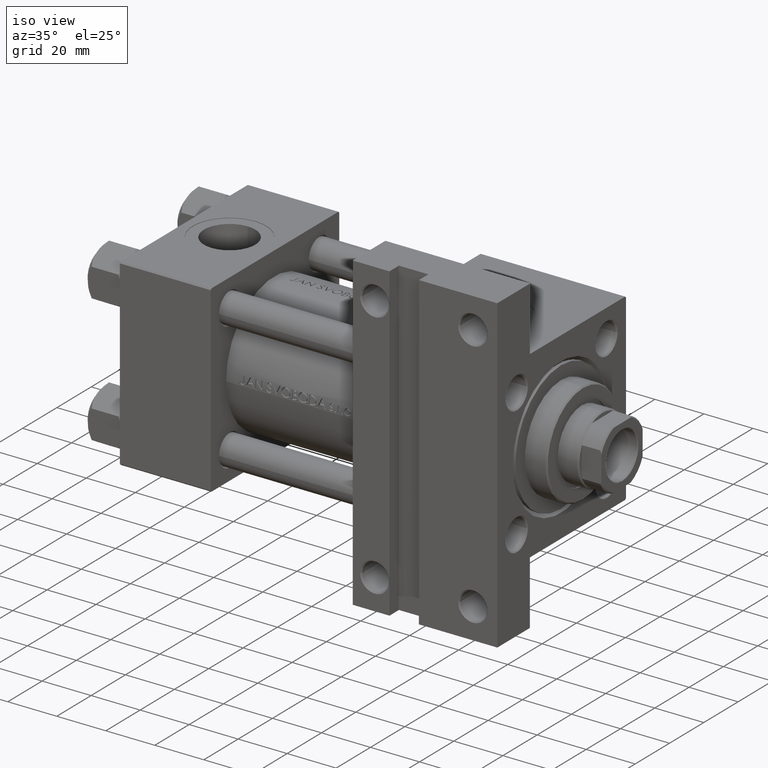
[diagram: clean part render]
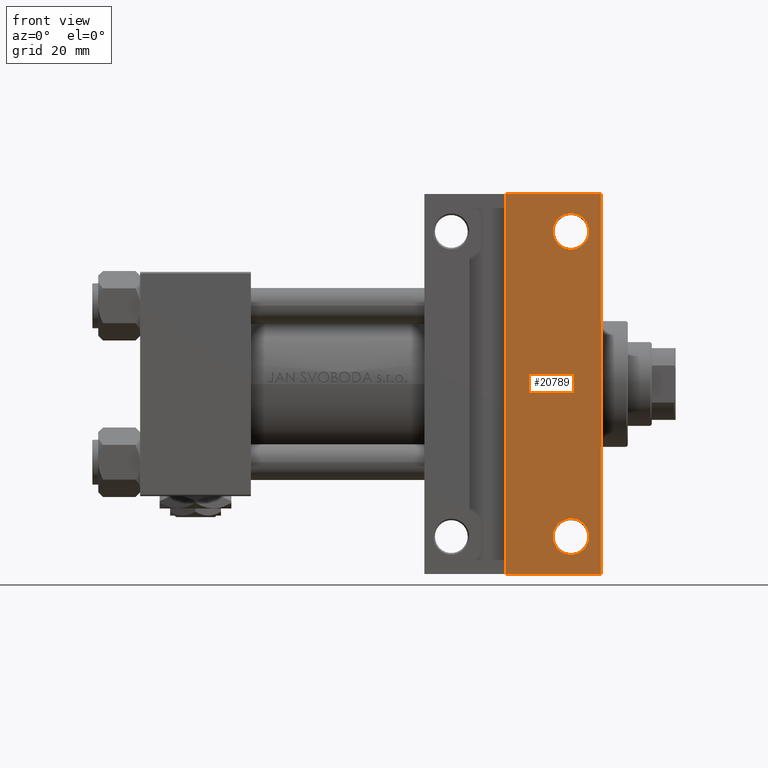
[diagram: tour spotlight — one face highlighted and labeled with its STEP entity id]
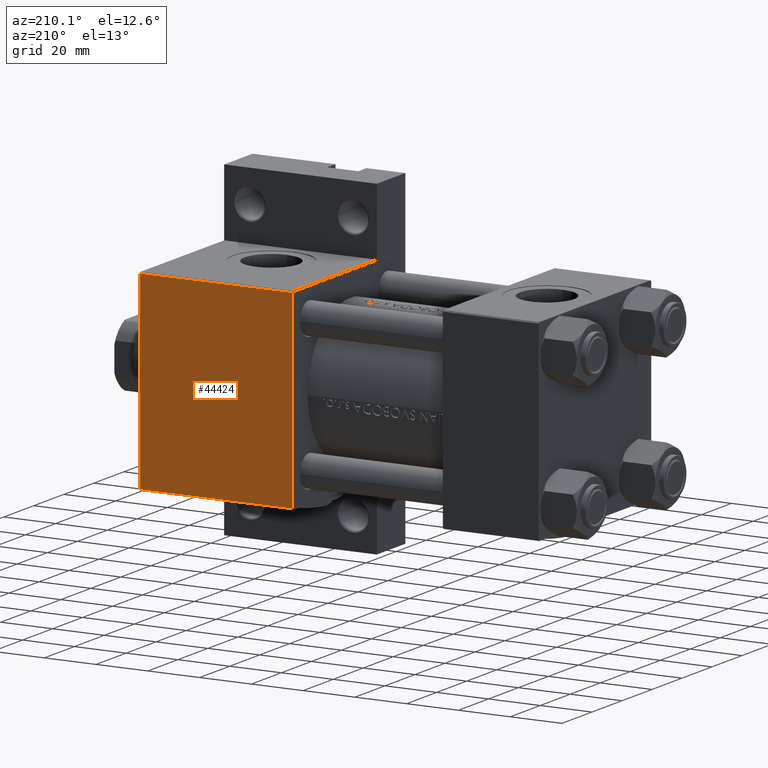
[diagram: tour spotlight — one face highlighted and labeled with its STEP entity id]
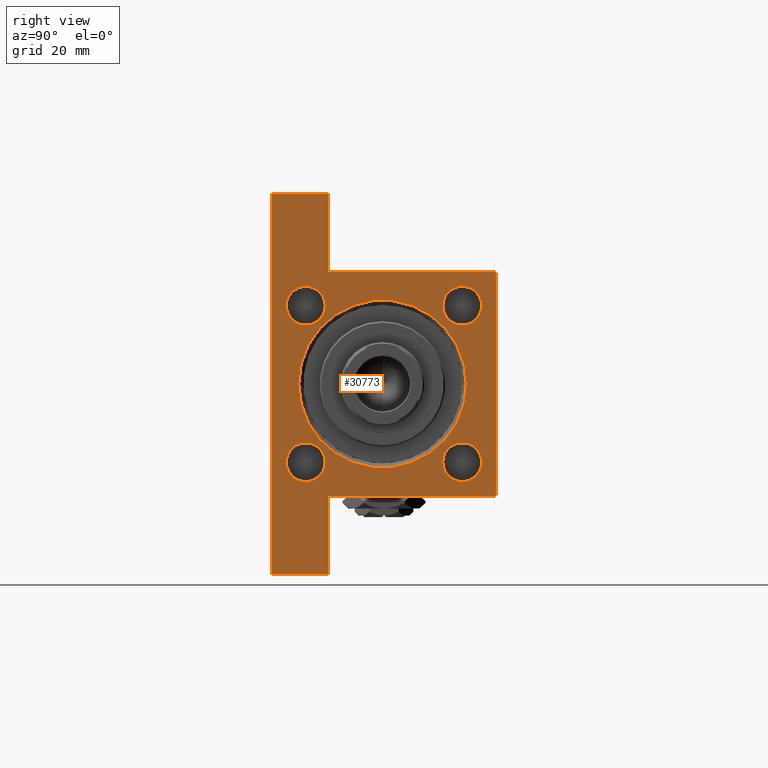
[diagram: tour spotlight — one face highlighted and labeled with its STEP entity id]
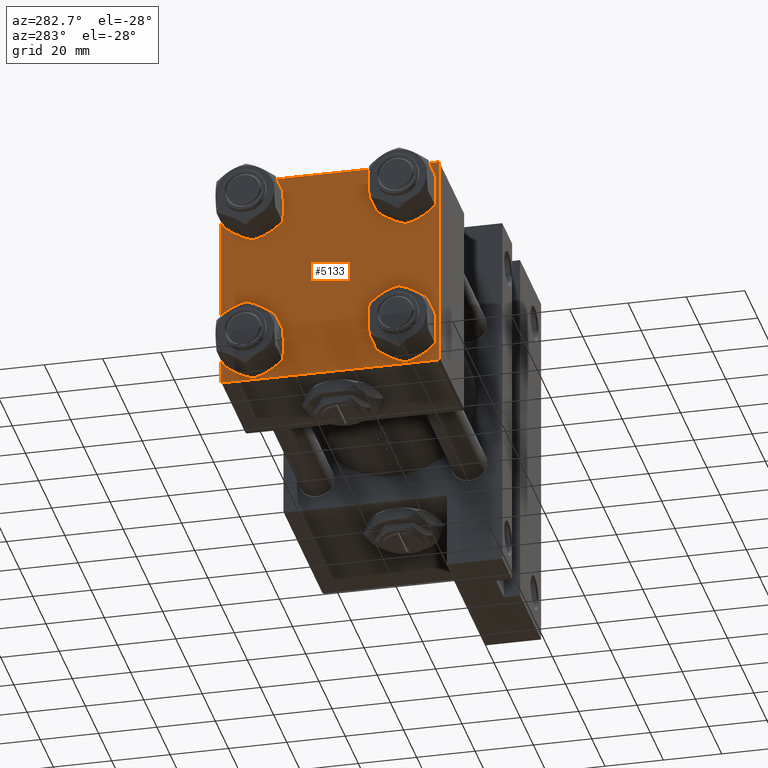
[diagram: tour spotlight — one face highlighted and labeled with its STEP entity id]
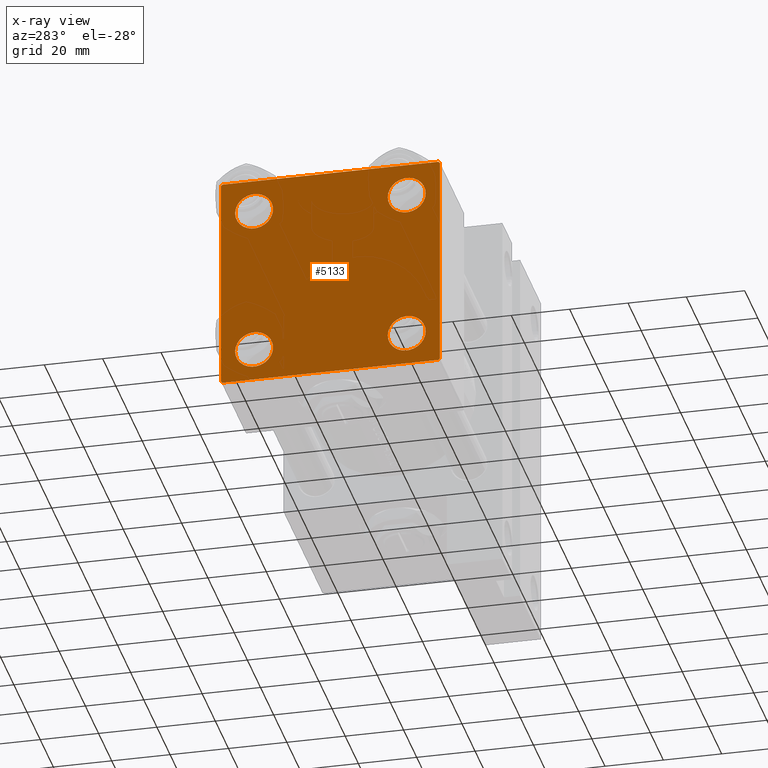
[diagram: x-ray of the same camera — body ghosted, this tour face saturated]
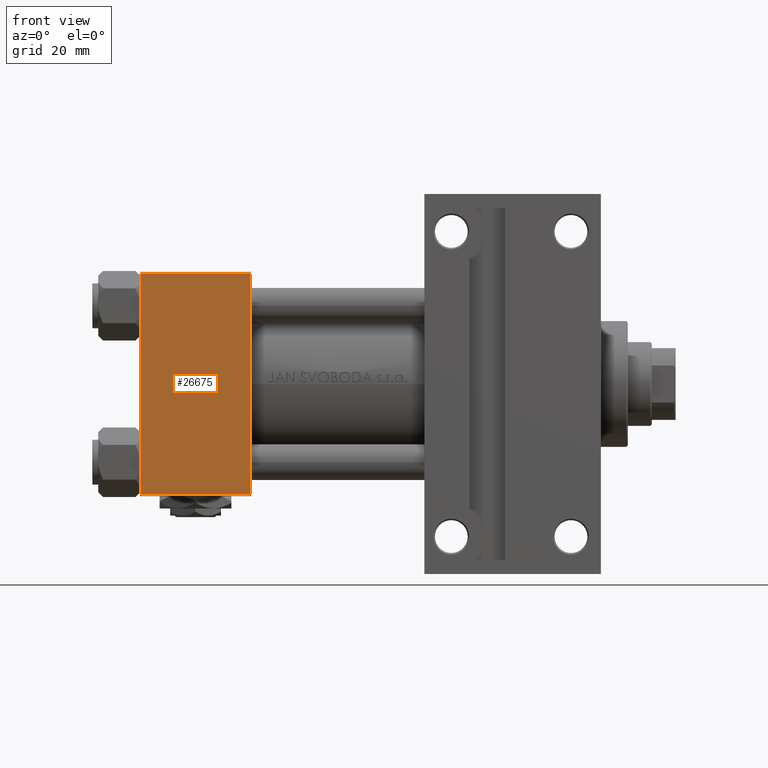
[diagram: tour spotlight — one face highlighted and labeled with its STEP entity id]
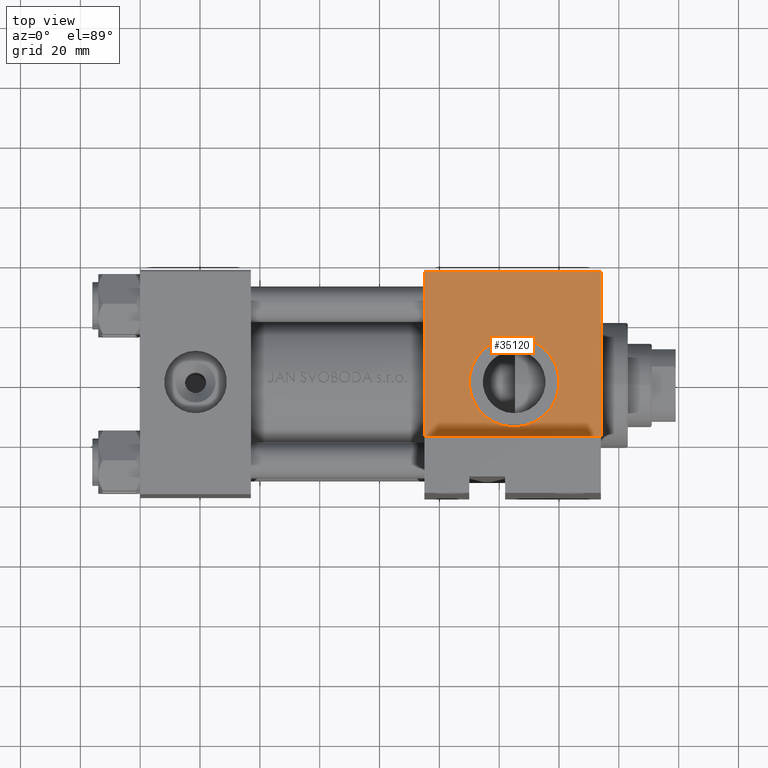
[diagram: tour spotlight — one face highlighted and labeled with its STEP entity id]
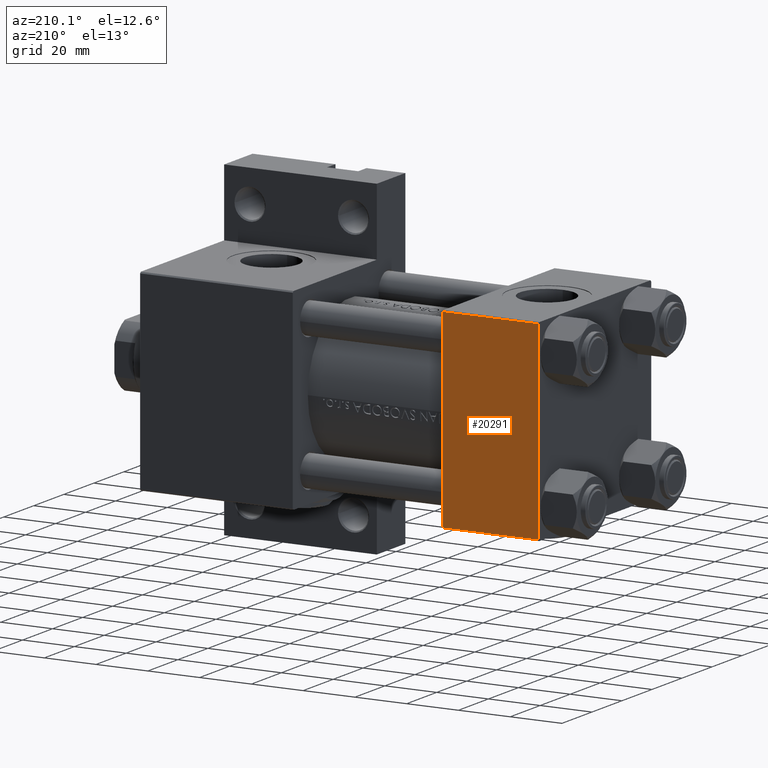
[diagram: tour spotlight — one face highlighted and labeled with its STEP entity id]
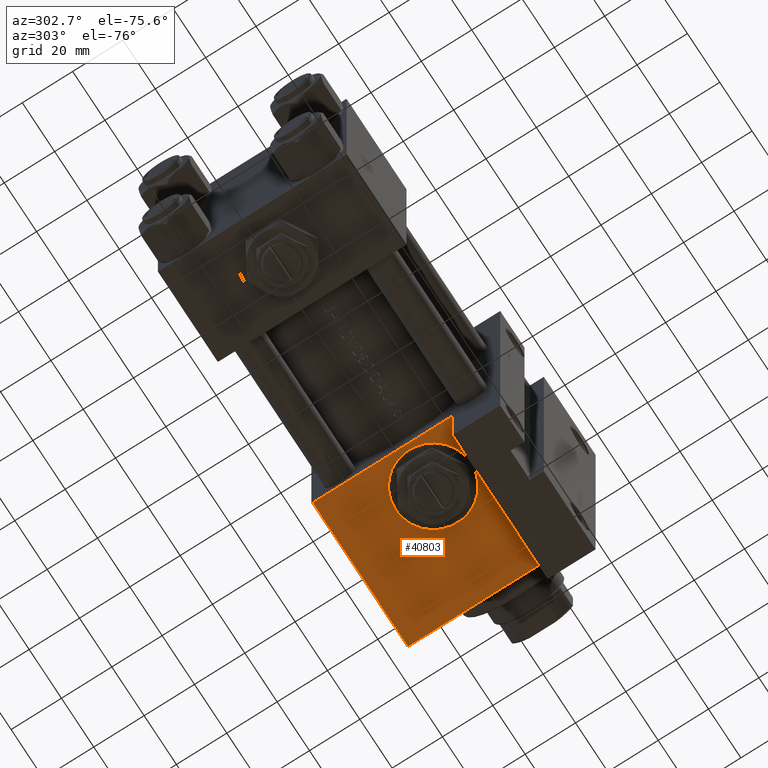
[diagram: tour spotlight — one face highlighted and labeled with its STEP entity id]
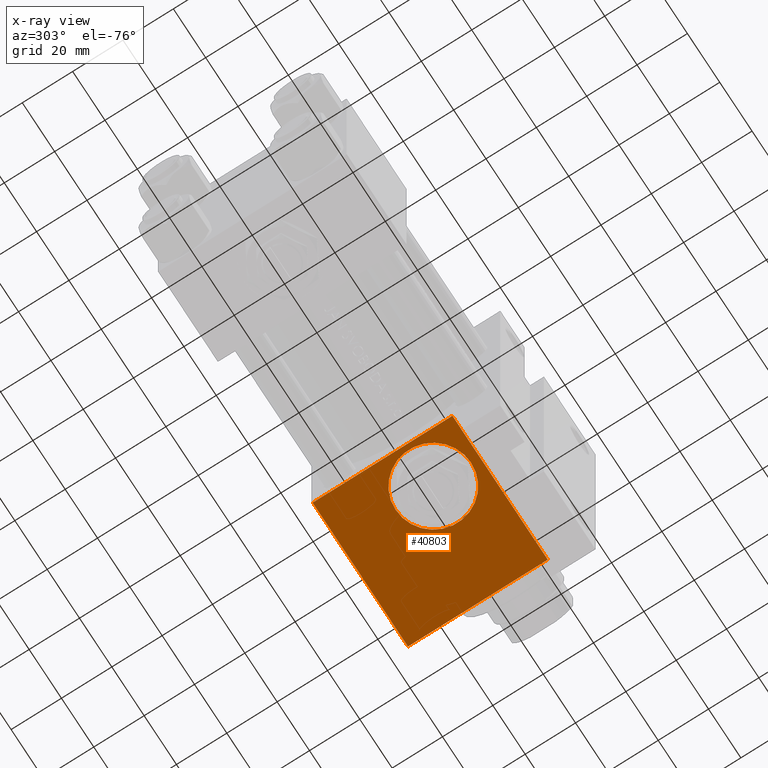
[diagram: x-ray of the same camera — body ghosted, this tour face saturated]
A machine part: a face-by-face anatomy tour. The part has 1199 B-rep faces; the first image is the clean iso view, then the 8 largest visible faces are spotlighted one at a time (largest first), each with its STEP entity span.

Face 1 — front view, entity #20789. In plain terms, the highlighted planar face has unit normal (0, -1, 0).
Definition (entity closure, byte-faithful):
#431 = VERTEX_POINT ( 'NONE', #25657 ) ;
#1627 = CARTESIAN_POINT ( 'NONE',  ( 143.9999999999999716, 51.00000000000000000, -37.50000000000000000 ) ) ;
#2046 = LINE ( 'NONE', #13868, #15249 ) ;
#2822 = EDGE_CURVE ( 'NONE', #431, #24070, #31807, .T. ) ;
#3547 = ORIENTED_EDGE ( 'NONE', *, *, #23842, .T. ) ;
#3671 = CARTESIAN_POINT ( 'NONE',  ( 149.9994999999999550, 51.00000000000000000, -37.50000000000000000 ) ) ;
#3751 = VERTEX_POINT ( 'NONE', #36087 ) ;
#4526 = VECTOR ( 'NONE', #18726, 1000.000000000000000 ) ;
#5273 = EDGE_CURVE ( 'NONE', #34514, #47149, #21594, .T. ) ;
#5280 = DIRECTION ( 'NONE',  ( -1.000000000000000000, 0.000000000000000000, 0.000000000000000000 ) ) ;
#5893 = DIRECTION ( 'NONE',  ( -1.000000000000000000, 0.000000000000000000, 0.000000000000000000 ) ) ;
#6190 = EDGE_LOOP ( 'NONE', ( #21986, #3547, #40870, #29185 ) ) ;
#6319 = DIRECTION ( 'NONE',  ( -1.000000000000000000, 4.704334850106596780E-16, -0.000000000000000000 ) ) ;
#6624 = ORIENTED_EDGE ( 'NONE', *, *, #17931, .T. ) ;
#6695 = FACE_OUTER_BOUND ( 'NONE', #6190, .T. ) ;
#7252 = DIRECTION ( 'NONE',  ( -0.000000000000000000, -1.000000000000000000, -0.000000000000000000 ) ) ;
#7904 = CARTESIAN_POINT ( 'NONE',  ( 153.9999999999999716, -63.50000000000002842, -37.50000000000000000 ) ) ;
#9481 = CARTESIAN_POINT ( 'NONE',  ( 143.9999999999999716, 51.00000000000000000, -37.50000000000000000 ) ) ;
#9929 = DIRECTION ( 'NONE',  ( -0.000000000000000000, -0.000000000000000000, 1.000000000000000000 ) ) ;
#9985 = CIRCLE ( 'NONE', #47702, 5.999499999999990507 ) ;
#10734 = FACE_BOUND ( 'NONE', #36083, .T. ) ;
#11535 = CARTESIAN_POINT ( 'NONE',  ( 122.0000000000000000, -63.50000000000000000, -37.50000000000000000 ) ) ;
#13243 = CARTESIAN_POINT ( 'NONE',  ( 143.9999999999999716, -51.00000000000000000, -37.50000000000000000 ) ) ;
#13337 = AXIS2_PLACEMENT_3D ( 'NONE', #9481, #22201, #37787 ) ;
#13868 = CARTESIAN_POINT ( 'NONE',  ( 94.99999999999998579, -63.50000000000000000, -37.50000000000000000 ) ) ;
#14032 = VERTEX_POINT ( 'NONE', #3671 ) ;
#15249 = VECTOR ( 'NONE', #6319, 1000.000000000000000 ) ;
#17009 = DIRECTION ( 'NONE',  ( -1.000000000000000000, 0.000000000000000000, 0.000000000000000000 ) ) ;
#17931 = EDGE_CURVE ( 'NONE', #47149, #34514, #34759, .T. ) ;
#18245 = CARTESIAN_POINT ( 'NONE',  ( 154.0000000000000000, 37.50000000000000000, -37.50000000000000000 ) ) ;
#18726 = DIRECTION ( 'NONE',  ( 1.000000000000000000, 0.000000000000000000, 0.000000000000000000 ) ) ;
#19147 = AXIS2_PLACEMENT_3D ( 'NONE', #39714, #24386, #5280 ) ;
#20789 = ADVANCED_FACE ( 'NONE', ( #6695, #30070, #10734 ), #37857, .T. ) ;
#21019 = EDGE_CURVE ( 'NONE', #21259, #14032, #9985, .T. ) ;
#21259 = VERTEX_POINT ( 'NONE', #45070 ) ;
#21594 = CIRCLE ( 'NONE', #19147, 5.999499999999990507 ) ;
#21986 = ORIENTED_EDGE ( 'NONE', *, *, #40275, .F. ) ;
#22201 = DIRECTION ( 'NONE',  ( -0.000000000000000000, -0.000000000000000000, 1.000000000000000000 ) ) ;
#23537 = VERTEX_POINT ( 'NONE', #29617 ) ;
#23842 = EDGE_CURVE ( 'NONE', #3751, #431, #41351, .T. ) ;
#24070 = VERTEX_POINT ( 'NONE', #7904 ) ;
#24386 = DIRECTION ( 'NONE',  ( -0.000000000000000000, -0.000000000000000000, 1.000000000000000000 ) ) ;
#25657 = CARTESIAN_POINT ( 'NONE',  ( 154.0000000000000000, 63.50000000000000000, -37.50000000000000000 ) ) ;
#26547 = DIRECTION ( 'NONE',  ( -1.000000000000000000, 0.000000000000000000, -0.000000000000000000 ) ) ;
#28886 = CARTESIAN_POINT ( 'NONE',  ( 138.0004999999999598, -51.00000000000000000, -37.50000000000000000 ) ) ;
#29185 = ORIENTED_EDGE ( 'NONE', *, *, #45723, .T. ) ;
#29617 = CARTESIAN_POINT ( 'NONE',  ( 122.0000000000000000, -63.50000000000000000, -37.50000000000000000 ) ) ;
#30070 = FACE_BOUND ( 'NONE', #35082, .T. ) ;
#31771 = CIRCLE ( 'NONE', #13337, 5.999499999999990507 ) ;
#31807 = LINE ( 'NONE', #43843, #48738 ) ;
#32310 = DIRECTION ( 'NONE',  ( 0.000000000000000000, -1.000000000000000000, 0.000000000000000000 ) ) ;
#34514 = VERTEX_POINT ( 'NONE', #28886 ) ;
#34759 = CIRCLE ( 'NONE', #45157, 5.999499999999990507 ) ;
#35082 = EDGE_LOOP ( 'NONE', ( #40082, #6624 ) ) ;
#36083 = EDGE_LOOP ( 'NONE', ( #39108, #46292 ) ) ;
#36087 = CARTESIAN_POINT ( 'NONE',  ( 122.0000000000000000, 63.50000000000000000, -37.50000000000000000 ) ) ;
#37787 = DIRECTION ( 'NONE',  ( -1.000000000000000000, 0.000000000000000000, 0.000000000000000000 ) ) ;
#37857 = PLANE ( 'NONE',  #49238 ) ;
#39108 = ORIENTED_EDGE ( 'NONE', *, *, #21019, .T. ) ;
#39565 = EDGE_CURVE ( 'NONE', #14032, #21259, #31771, .T. ) ;
#39639 = DIRECTION ( 'NONE',  ( -0.000000000000000000, -0.000000000000000000, 1.000000000000000000 ) ) ;
#39714 = CARTESIAN_POINT ( 'NONE',  ( 143.9999999999999716, -51.00000000000000000, -37.50000000000000000 ) ) ;
#40082 = ORIENTED_EDGE ( 'NONE', *, *, #5273, .T. ) ;
#40275 = EDGE_CURVE ( 'NONE', #3751, #23537, #49445, .T. ) ;
#40870 = ORIENTED_EDGE ( 'NONE', *, *, #2822, .T. ) ;
#41351 = LINE ( 'NONE', #48627, #4526 ) ;
#43843 = CARTESIAN_POINT ( 'NONE',  ( 154.0000000000000000, 37.50000000000000000, -37.50000000000000000 ) ) ;
#44762 = CARTESIAN_POINT ( 'NONE',  ( 149.9994999999999550, -51.00000000000000000, -37.50000000000000000 ) ) ;
#45070 = CARTESIAN_POINT ( 'NONE',  ( 138.0004999999999598, 51.00000000000000000, -37.50000000000000000 ) ) ;
#45157 = AXIS2_PLACEMENT_3D ( 'NONE', #13243, #39639, #17009 ) ;
#45610 = DIRECTION ( 'NONE',  ( 0.000000000000000000, 0.000000000000000000, -1.000000000000000000 ) ) ;
#45723 = EDGE_CURVE ( 'NONE', #24070, #23537, #2046, .T. ) ;
#46292 = ORIENTED_EDGE ( 'NONE', *, *, #39565, .T. ) ;
#47149 = VERTEX_POINT ( 'NONE', #44762 ) ;
#47702 = AXIS2_PLACEMENT_3D ( 'NONE', #1627, #9929, #5893 ) ;
#48613 = VECTOR ( 'NONE', #7252, 1000.000000000000000 ) ;
#48627 = CARTESIAN_POINT ( 'NONE',  ( 95.00000000000000000, 63.50000000000000000, -37.50000000000000000 ) ) ;
#48738 = VECTOR ( 'NONE', #32310, 1000.000000000000000 ) ;
#49238 = AXIS2_PLACEMENT_3D ( 'NONE', #18245, #45610, #26547 ) ;
#49445 = LINE ( 'NONE', #11535, #48613 ) ;

Face 2 — auxiliary view, entity #44424. In plain terms, the highlighted planar face has unit normal (0, -1, -0).
Definition (entity closure, byte-faithful):
#147 = PLANE ( 'NONE',  #24835 ) ;
#2557 = VERTEX_POINT ( 'NONE', #21588 ) ;
#2743 = EDGE_CURVE ( 'NONE', #47429, #2557, #33343, .T. ) ;
#6962 = ORIENTED_EDGE ( 'NONE', *, *, #39343, .T. ) ;
#6990 = DIRECTION ( 'NONE',  ( 1.000000000000000000, 0.000000000000000000, 0.000000000000000000 ) ) ;
#9056 = ORIENTED_EDGE ( 'NONE', *, *, #28100, .F. ) ;
#9291 = VECTOR ( 'NONE', #6990, 1000.000000000000000 ) ;
#9354 = VECTOR ( 'NONE', #27484, 1000.000000000000000 ) ;
#13621 = EDGE_LOOP ( 'NONE', ( #9056, #36990, #33101, #6962 ) ) ;
#15470 = DIRECTION ( 'NONE',  ( 0.000000000000000000, 1.850371707708594316E-16, -1.000000000000000000 ) ) ;
#17324 = CARTESIAN_POINT ( 'NONE',  ( 95.00000000000000000, 37.00000000000000000, 37.49999999999999289 ) ) ;
#18496 = FACE_OUTER_BOUND ( 'NONE', #13621, .T. ) ;
#20491 = CARTESIAN_POINT ( 'NONE',  ( 154.0000000000000000, 37.50000000000000000, 37.49999999999999289 ) ) ;
#20719 = VECTOR ( 'NONE', #35820, 1000.000000000000000 ) ;
#21588 = CARTESIAN_POINT ( 'NONE',  ( 95.00000000000000000, -36.99999999999997158, 37.49999999999997868 ) ) ;
#24158 = CARTESIAN_POINT ( 'NONE',  ( 95.00000000000000000, 37.00000000000000000, 37.49999999999999289 ) ) ;
#24835 = AXIS2_PLACEMENT_3D ( 'NONE', #34079, #15470, #30804 ) ;
#27351 = CARTESIAN_POINT ( 'NONE',  ( 154.0000000000000000, -36.99999999999997158, 37.49999999999997868 ) ) ;
#27484 = DIRECTION ( 'NONE',  ( -1.000000000000000000, 0.000000000000000000, 0.000000000000000000 ) ) ;
#28100 = EDGE_CURVE ( 'NONE', #36151, #37980, #48355, .T. ) ;
#29589 = CARTESIAN_POINT ( 'NONE',  ( 95.00000000000000000, 37.50000000000000000, 37.49999999999999289 ) ) ;
#30804 = DIRECTION ( 'NONE',  ( 0.000000000000000000, 1.000000000000000000, 1.850371707708594316E-16 ) ) ;
#31110 = LINE ( 'NONE', #27351, #9291 ) ;
#33101 = ORIENTED_EDGE ( 'NONE', *, *, #2743, .T. ) ;
#33343 = LINE ( 'NONE', #29589, #49520 ) ;
#34079 = CARTESIAN_POINT ( 'NONE',  ( 154.0000000000000000, 37.50000000000000000, 37.49999999999999289 ) ) ;
#35820 = DIRECTION ( 'NONE',  ( 0.000000000000000000, -1.000000000000000000, -1.850371707708594316E-16 ) ) ;
#36151 = VERTEX_POINT ( 'NONE', #36646 ) ;
#36646 = CARTESIAN_POINT ( 'NONE',  ( 154.0000000000000000, 37.00000000000000000, 37.49999999999999289 ) ) ;
#36990 = ORIENTED_EDGE ( 'NONE', *, *, #40972, .T. ) ;
#37980 = VERTEX_POINT ( 'NONE', #40533 ) ;
#39343 = EDGE_CURVE ( 'NONE', #2557, #37980, #31110, .T. ) ;
#40533 = CARTESIAN_POINT ( 'NONE',  ( 154.0000000000000000, -36.99999999999997158, 37.49999999999997868 ) ) ;
#40972 = EDGE_CURVE ( 'NONE', #36151, #47429, #47505, .T. ) ;
#44424 = ADVANCED_FACE ( 'NONE', ( #18496 ), #147, .F. ) ;
#44888 = DIRECTION ( 'NONE',  ( 0.000000000000000000, -1.000000000000000000, -1.850371707708594316E-16 ) ) ;
#47429 = VERTEX_POINT ( 'NONE', #24158 ) ;
#47505 = LINE ( 'NONE', #17324, #9354 ) ;
#48355 = LINE ( 'NONE', #20491, #20719 ) ;
#49520 = VECTOR ( 'NONE', #44888, 1000.000000000000000 ) ;

Face 3 — right view, entity #30773. In plain terms, the highlighted planar face has unit normal (-1, 0, 0).
Definition (entity closure, byte-faithful):
#232 = LINE ( 'NONE', #22847, #11381 ) ;
#431 = VERTEX_POINT ( 'NONE', #25657 ) ;
#731 = DIRECTION ( 'NONE',  ( -1.000000000000000000, -0.000000000000000000, 0.000000000000000000 ) ) ;
#800 = CARTESIAN_POINT ( 'NONE',  ( 154.0000000000000000, -37.50000000000000000, 36.99999999999997868 ) ) ;
#1552 = FACE_BOUND ( 'NONE', #43101, .T. ) ;
#1657 = AXIS2_PLACEMENT_3D ( 'NONE', #18765, #37625, #14749 ) ;
#2521 = DIRECTION ( 'NONE',  ( 0.000000000000000000, 0.000000000000000000, 1.000000000000000000 ) ) ;
#2674 = DIRECTION ( 'NONE',  ( 0.000000000000000000, 0.000000000000000000, -1.000000000000000000 ) ) ;
#2757 = CARTESIAN_POINT ( 'NONE',  ( 153.9999999999999716, -63.50000000000002842, -18.50000000000000000 ) ) ;
#2787 = DIRECTION ( 'NONE',  ( -1.000000000000000000, -0.000000000000000000, 0.000000000000000000 ) ) ;
#2822 = EDGE_CURVE ( 'NONE', #431, #24070, #31807, .T. ) ;
#2844 = VERTEX_POINT ( 'NONE', #39356 ) ;
#3111 = VERTEX_POINT ( 'NONE', #38738 ) ;
#3666 = ORIENTED_EDGE ( 'NONE', *, *, #20723, .F. ) ;
#4097 = VERTEX_POINT ( 'NONE', #8634 ) ;
#4254 = ORIENTED_EDGE ( 'NONE', *, *, #14683, .F. ) ;
#5418 = CARTESIAN_POINT ( 'NONE',  ( 154.0000000000000000, -26.14999999999999147, 32.64999999999999858 ) ) ;
#6029 = ORIENTED_EDGE ( 'NONE', *, *, #22578, .T. ) ;
#6211 = VERTEX_POINT ( 'NONE', #42779 ) ;
#6567 = DIRECTION ( 'NONE',  ( 0.000000000000000000, 0.000000000000000000, 1.000000000000000000 ) ) ;
#6740 = VECTOR ( 'NONE', #2674, 1000.000000000000000 ) ;
#6772 = AXIS2_PLACEMENT_3D ( 'NONE', #28658, #9313, #35696 ) ;
#6931 = AXIS2_PLACEMENT_3D ( 'NONE', #10884, #731, #14875 ) ;
#7020 = EDGE_LOOP ( 'NONE', ( #13398, #11811 ) ) ;
#7084 = DIRECTION ( 'NONE',  ( 0.000000000000000000, 0.000000000000000000, 1.000000000000000000 ) ) ;
#7212 = AXIS2_PLACEMENT_3D ( 'NONE', #7745, #12528, #31621 ) ;
#7290 = VERTEX_POINT ( 'NONE', #45676 ) ;
#7358 = EDGE_CURVE ( 'NONE', #7290, #18374, #22457, .T. ) ;
#7745 = CARTESIAN_POINT ( 'NONE',  ( 154.0000000000000000, 26.14999999999999858, 26.15000000000000213 ) ) ;
#7904 = CARTESIAN_POINT ( 'NONE',  ( 153.9999999999999716, -63.50000000000002842, -37.50000000000000000 ) ) ;
#8634 = CARTESIAN_POINT ( 'NONE',  ( 154.0000000000000000, 26.14999999999999858, -32.65000000000001279 ) ) ;
#8900 = ORIENTED_EDGE ( 'NONE', *, *, #16660, .T. ) ;
#9178 = VERTEX_POINT ( 'NONE', #5418 ) ;
#9313 = DIRECTION ( 'NONE',  ( -1.000000000000000000, -0.000000000000000000, 0.000000000000000000 ) ) ;
#9426 = DIRECTION ( 'NONE',  ( -1.000000000000000000, -0.000000000000000000, 0.000000000000000000 ) ) ;
#9468 = VERTEX_POINT ( 'NONE', #13153 ) ;
#9611 = FACE_OUTER_BOUND ( 'NONE', #37444, .T. ) ;
#9734 = CARTESIAN_POINT ( 'NONE',  ( 154.0000000000000000, -26.14999999999999147, 26.14999999999999503 ) ) ;
#9978 = DIRECTION ( 'NONE',  ( -1.000000000000000000, -0.000000000000000000, 0.000000000000000000 ) ) ;
#10013 = EDGE_CURVE ( 'NONE', #19845, #37867, #18517, .T. ) ;
#10038 = DIRECTION ( 'NONE',  ( -0.000000000000000000, -0.7071067811865672237, -0.7071067811865279218 ) ) ;
#10078 = CARTESIAN_POINT ( 'NONE',  ( 154.0000000000000000, 26.14999999999999858, -26.15000000000000213 ) ) ;
#10814 = ORIENTED_EDGE ( 'NONE', *, *, #28100, .T. ) ;
#10884 = CARTESIAN_POINT ( 'NONE',  ( 154.0000000000000000, 26.14999999999999858, 26.15000000000000213 ) ) ;
#11381 = VECTOR ( 'NONE', #29713, 1000.000000000000000 ) ;
#11811 = ORIENTED_EDGE ( 'NONE', *, *, #23432, .T. ) ;
#12083 = CARTESIAN_POINT ( 'NONE',  ( 153.9999999999999716, 37.50000000000000711, -18.50000000000000000 ) ) ;
#12528 = DIRECTION ( 'NONE',  ( -1.000000000000000000, -0.000000000000000000, 0.000000000000000000 ) ) ;
#12968 = ORIENTED_EDGE ( 'NONE', *, *, #10013, .T. ) ;
#13105 = VERTEX_POINT ( 'NONE', #41289 ) ;
#13112 = AXIS2_PLACEMENT_3D ( 'NONE', #9734, #9978, #28822 ) ;
#13131 = FACE_BOUND ( 'NONE', #31407, .T. ) ;
#13153 = CARTESIAN_POINT ( 'NONE',  ( 154.0000000000000000, 26.14999999999999858, -19.64999999999999858 ) ) ;
#13398 = ORIENTED_EDGE ( 'NONE', *, *, #7358, .T. ) ;
#13409 = EDGE_CURVE ( 'NONE', #37980, #3111, #39003, .T. ) ;
#13438 = AXIS2_PLACEMENT_3D ( 'NONE', #46665, #42386, #46407 ) ;
#13630 = EDGE_CURVE ( 'NONE', #2844, #31034, #45827, .T. ) ;
#13846 = VECTOR ( 'NONE', #22729, 1000.000000000000000 ) ;
#14683 = EDGE_CURVE ( 'NONE', #36386, #31034, #232, .T. ) ;
#14749 = DIRECTION ( 'NONE',  ( 0.000000000000000000, 0.000000000000000000, 1.000000000000000000 ) ) ;
#14875 = DIRECTION ( 'NONE',  ( 0.000000000000000000, 0.000000000000000000, 1.000000000000000000 ) ) ;
#15010 = ORIENTED_EDGE ( 'NONE', *, *, #49501, .T. ) ;
#15274 = ORIENTED_EDGE ( 'NONE', *, *, #21047, .T. ) ;
#16660 = EDGE_CURVE ( 'NONE', #26488, #24639, #24293, .T. ) ;
#17029 = ORIENTED_EDGE ( 'NONE', *, *, #13630, .T. ) ;
#17339 = DIRECTION ( 'NONE',  ( -1.000000000000000000, -0.000000000000000000, 0.000000000000000000 ) ) ;
#17994 = EDGE_CURVE ( 'NONE', #9178, #33665, #46771, .T. ) ;
#18374 = VERTEX_POINT ( 'NONE', #22940 ) ;
#18517 = CIRCLE ( 'NONE', #1657, 27.99999999999999645 ) ;
#18617 = VECTOR ( 'NONE', #10038, 1000.000000000000000 ) ;
#18765 = CARTESIAN_POINT ( 'NONE',  ( 154.0000000000000000, 0.000000000000000000, -0.5000000000000004441 ) ) ;
#19268 = AXIS2_PLACEMENT_3D ( 'NONE', #10078, #17339, #2521 ) ;
#19354 = EDGE_CURVE ( 'NONE', #13105, #24070, #33448, .T. ) ;
#19614 = CIRCLE ( 'NONE', #42067, 6.500000000000002665 ) ;
#19845 = VERTEX_POINT ( 'NONE', #42658 ) ;
#20491 = CARTESIAN_POINT ( 'NONE',  ( 154.0000000000000000, 37.50000000000000000, 37.49999999999999289 ) ) ;
#20643 = CIRCLE ( 'NONE', #13438, 6.500000000000002665 ) ;
#20719 = VECTOR ( 'NONE', #35820, 1000.000000000000000 ) ;
#20723 = EDGE_CURVE ( 'NONE', #2844, #431, #29578, .T. ) ;
#20796 = CARTESIAN_POINT ( 'NONE',  ( 154.0000000000000000, 63.50000000000000000, -18.50000000000000000 ) ) ;
#21047 = EDGE_CURVE ( 'NONE', #24639, #26488, #19614, .T. ) ;
#21154 = CARTESIAN_POINT ( 'NONE',  ( 153.9999999999999716, -63.50000000000002842, -18.50000000000000000 ) ) ;
#21217 = CARTESIAN_POINT ( 'NONE',  ( 154.0000000000000000, -26.15000000000000213, -26.15000000000000213 ) ) ;
#21643 = CARTESIAN_POINT ( 'NONE',  ( 154.0000000000000000, 0.000000000000000000, 0.000000000000000000 ) ) ;
#21752 = EDGE_CURVE ( 'NONE', #4097, #9468, #28458, .T. ) ;
#22054 = LINE ( 'NONE', #26083, #23765 ) ;
#22457 = CIRCLE ( 'NONE', #7212, 6.500000000000002665 ) ;
#22578 = EDGE_CURVE ( 'NONE', #3111, #6211, #22054, .T. ) ;
#22712 = ORIENTED_EDGE ( 'NONE', *, *, #29572, .T. ) ;
#22729 = DIRECTION ( 'NONE',  ( -1.067522139062650671E-15, -1.000000000000000000, 0.000000000000000000 ) ) ;
#22812 = CARTESIAN_POINT ( 'NONE',  ( 154.0000000000000000, 0.000000000000000000, -0.5000000000000004441 ) ) ;
#22847 = CARTESIAN_POINT ( 'NONE',  ( 154.0000000000000000, 37.50000000000000000, 37.49999999999999289 ) ) ;
#22940 = CARTESIAN_POINT ( 'NONE',  ( 154.0000000000000000, 26.14999999999999858, 32.65000000000000568 ) ) ;
#23255 = CIRCLE ( 'NONE', #19268, 6.500000000000002665 ) ;
#23432 = EDGE_CURVE ( 'NONE', #18374, #7290, #43841, .T. ) ;
#23609 = EDGE_LOOP ( 'NONE', ( #28416, #40633 ) ) ;
#23765 = VECTOR ( 'NONE', #41398, 1000.000000000000000 ) ;
#24070 = VERTEX_POINT ( 'NONE', #7904 ) ;
#24293 = CIRCLE ( 'NONE', #34692, 6.500000000000002665 ) ;
#24527 = VECTOR ( 'NONE', #26385, 1000.000000000000114 ) ;
#24639 = VERTEX_POINT ( 'NONE', #34932 ) ;
#24926 = PLANE ( 'NONE',  #39308 ) ;
#25657 = CARTESIAN_POINT ( 'NONE',  ( 154.0000000000000000, 63.50000000000000000, -37.50000000000000000 ) ) ;
#25731 = AXIS2_PLACEMENT_3D ( 'NONE', #22812, #48946, #38391 ) ;
#26083 = CARTESIAN_POINT ( 'NONE',  ( 154.0000000000000000, -37.50000000000000000, 37.49999999999997868 ) ) ;
#26219 = EDGE_CURVE ( 'NONE', #33665, #9178, #20643, .T. ) ;
#26385 = DIRECTION ( 'NONE',  ( 0.000000000000000000, -0.7071067811865474617, 0.7071067811865474617 ) ) ;
#26488 = VERTEX_POINT ( 'NONE', #26716 ) ;
#26716 = CARTESIAN_POINT ( 'NONE',  ( 154.0000000000000000, -26.15000000000000213, -19.64999999999999858 ) ) ;
#26761 = CARTESIAN_POINT ( 'NONE',  ( 154.0000000000000000, 0.000000000000000000, -28.49999999999999645 ) ) ;
#28100 = EDGE_CURVE ( 'NONE', #36151, #37980, #48355, .T. ) ;
#28416 = ORIENTED_EDGE ( 'NONE', *, *, #21752, .T. ) ;
#28458 = CIRCLE ( 'NONE', #6772, 6.500000000000002665 ) ;
#28658 = CARTESIAN_POINT ( 'NONE',  ( 154.0000000000000000, 26.14999999999999858, -26.15000000000000213 ) ) ;
#28822 = DIRECTION ( 'NONE',  ( 0.000000000000000000, 0.000000000000000000, 1.000000000000000000 ) ) ;
#29214 = ORIENTED_EDGE ( 'NONE', *, *, #13409, .T. ) ;
#29410 = CARTESIAN_POINT ( 'NONE',  ( 154.0000000000000000, 37.50000000000000000, 36.99999999999999289 ) ) ;
#29572 = EDGE_CURVE ( 'NONE', #6211, #13105, #37200, .T. ) ;
#29578 = LINE ( 'NONE', #20796, #6740 ) ;
#29713 = DIRECTION ( 'NONE',  ( 0.000000000000000000, 0.000000000000000000, -1.000000000000000000 ) ) ;
#29983 = CARTESIAN_POINT ( 'NONE',  ( 154.0000000000000000, -26.15000000000000213, -26.15000000000000213 ) ) ;
#30055 = EDGE_LOOP ( 'NONE', ( #41656, #48116 ) ) ;
#30773 = ADVANCED_FACE ( 'NONE', ( #43268, #39762, #1552, #32228, #13131, #9611 ), #24926, .F. ) ;
#31034 = VERTEX_POINT ( 'NONE', #12083 ) ;
#31407 = EDGE_LOOP ( 'NONE', ( #15010, #12968 ) ) ;
#31621 = DIRECTION ( 'NONE',  ( 0.000000000000000000, 0.000000000000000000, 1.000000000000000000 ) ) ;
#31807 = LINE ( 'NONE', #43843, #48738 ) ;
#32228 = FACE_BOUND ( 'NONE', #23609, .T. ) ;
#32310 = DIRECTION ( 'NONE',  ( 0.000000000000000000, -1.000000000000000000, 0.000000000000000000 ) ) ;
#32707 = DIRECTION ( 'NONE',  ( 0.000000000000000000, 0.000000000000000000, -1.000000000000000000 ) ) ;
#33448 = LINE ( 'NONE', #21154, #35595 ) ;
#33665 = VERTEX_POINT ( 'NONE', #39808 ) ;
#33673 = DIRECTION ( 'NONE',  ( -0.000000000000000000, -1.000000000000000000, -0.000000000000000000 ) ) ;
#33803 = CARTESIAN_POINT ( 'NONE',  ( 154.0000000000000000, 63.50000000000000000, -18.50000000000000000 ) ) ;
#33935 = CARTESIAN_POINT ( 'NONE',  ( 154.0000000000000000, 37.00000000000000000, 37.49999999999999289 ) ) ;
#34692 = AXIS2_PLACEMENT_3D ( 'NONE', #29983, #44777, #7084 ) ;
#34932 = CARTESIAN_POINT ( 'NONE',  ( 154.0000000000000000, -26.15000000000000213, -32.65000000000001279 ) ) ;
#35595 = VECTOR ( 'NONE', #32707, 1000.000000000000000 ) ;
#35696 = DIRECTION ( 'NONE',  ( 0.000000000000000000, 0.000000000000000000, 1.000000000000000000 ) ) ;
#35820 = DIRECTION ( 'NONE',  ( 0.000000000000000000, -1.000000000000000000, -1.850371707708594316E-16 ) ) ;
#36151 = VERTEX_POINT ( 'NONE', #36646 ) ;
#36386 = VERTEX_POINT ( 'NONE', #29410 ) ;
#36554 = DIRECTION ( 'NONE',  ( 0.000000000000000000, 0.000000000000000000, 1.000000000000000000 ) ) ;
#36646 = CARTESIAN_POINT ( 'NONE',  ( 154.0000000000000000, 37.00000000000000000, 37.49999999999999289 ) ) ;
#37200 = LINE ( 'NONE', #2757, #44838 ) ;
#37444 = EDGE_LOOP ( 'NONE', ( #4254, #40808, #10814, #29214, #6029, #22712, #38569, #49050, #3666, #17029 ) ) ;
#37625 = DIRECTION ( 'NONE',  ( -1.000000000000000000, -0.000000000000000000, 0.000000000000000000 ) ) ;
#37867 = VERTEX_POINT ( 'NONE', #26761 ) ;
#37980 = VERTEX_POINT ( 'NONE', #40533 ) ;
#38391 = DIRECTION ( 'NONE',  ( 0.000000000000000000, 0.000000000000000000, 1.000000000000000000 ) ) ;
#38408 = EDGE_CURVE ( 'NONE', #36386, #36151, #42439, .T. ) ;
#38569 = ORIENTED_EDGE ( 'NONE', *, *, #19354, .T. ) ;
#38738 = CARTESIAN_POINT ( 'NONE',  ( 154.0000000000000000, -37.50000000000000000, 36.99999999999997868 ) ) ;
#39003 = LINE ( 'NONE', #800, #18617 ) ;
#39308 = AXIS2_PLACEMENT_3D ( 'NONE', #21643, #2787, #6567 ) ;
#39356 = CARTESIAN_POINT ( 'NONE',  ( 154.0000000000000000, 63.50000000000000000, -18.50000000000000000 ) ) ;
#39762 = FACE_BOUND ( 'NONE', #30055, .T. ) ;
#39808 = CARTESIAN_POINT ( 'NONE',  ( 154.0000000000000000, -26.14999999999999147, 19.64999999999999503 ) ) ;
#40533 = CARTESIAN_POINT ( 'NONE',  ( 154.0000000000000000, -36.99999999999997158, 37.49999999999997868 ) ) ;
#40633 = ORIENTED_EDGE ( 'NONE', *, *, #48208, .T. ) ;
#40808 = ORIENTED_EDGE ( 'NONE', *, *, #38408, .T. ) ;
#41289 = CARTESIAN_POINT ( 'NONE',  ( 153.9999999999999716, -63.50000000000002842, -18.50000000000000000 ) ) ;
#41398 = DIRECTION ( 'NONE',  ( 0.000000000000000000, -9.251858538542972814E-17, -1.000000000000000000 ) ) ;
#41656 = ORIENTED_EDGE ( 'NONE', *, *, #26219, .T. ) ;
#42067 = AXIS2_PLACEMENT_3D ( 'NONE', #21217, #9426, #36554 ) ;
#42386 = DIRECTION ( 'NONE',  ( -1.000000000000000000, -0.000000000000000000, 0.000000000000000000 ) ) ;
#42439 = LINE ( 'NONE', #33935, #24527 ) ;
#42658 = CARTESIAN_POINT ( 'NONE',  ( 154.0000000000000000, 3.429011037612588881E-15, 27.49999999999999645 ) ) ;
#42779 = CARTESIAN_POINT ( 'NONE',  ( 154.0000000000000000, -37.50000000000000711, -18.50000000000000355 ) ) ;
#43101 = EDGE_LOOP ( 'NONE', ( #15274, #8900 ) ) ;
#43268 = FACE_BOUND ( 'NONE', #7020, .T. ) ;
#43841 = CIRCLE ( 'NONE', #6931, 6.500000000000002665 ) ;
#43843 = CARTESIAN_POINT ( 'NONE',  ( 154.0000000000000000, 37.50000000000000000, -37.50000000000000000 ) ) ;
#44777 = DIRECTION ( 'NONE',  ( -1.000000000000000000, -0.000000000000000000, 0.000000000000000000 ) ) ;
#44838 = VECTOR ( 'NONE', #33673, 1000.000000000000000 ) ;
#44945 = CIRCLE ( 'NONE', #25731, 27.99999999999999645 ) ;
#45676 = CARTESIAN_POINT ( 'NONE',  ( 154.0000000000000000, 26.14999999999999858, 19.65000000000000213 ) ) ;
#45827 = LINE ( 'NONE', #33803, #13846 ) ;
#46407 = DIRECTION ( 'NONE',  ( 0.000000000000000000, 0.000000000000000000, 1.000000000000000000 ) ) ;
#46665 = CARTESIAN_POINT ( 'NONE',  ( 154.0000000000000000, -26.14999999999999147, 26.14999999999999503 ) ) ;
#46771 = CIRCLE ( 'NONE', #13112, 6.500000000000002665 ) ;
#48116 = ORIENTED_EDGE ( 'NONE', *, *, #17994, .T. ) ;
#48208 = EDGE_CURVE ( 'NONE', #9468, #4097, #23255, .T. ) ;
#48355 = LINE ( 'NONE', #20491, #20719 ) ;
#48738 = VECTOR ( 'NONE', #32310, 1000.000000000000000 ) ;
#48946 = DIRECTION ( 'NONE',  ( -1.000000000000000000, -0.000000000000000000, 0.000000000000000000 ) ) ;
#49050 = ORIENTED_EDGE ( 'NONE', *, *, #2822, .F. ) ;
#49501 = EDGE_CURVE ( 'NONE', #37867, #19845, #44945, .T. ) ;

Face 4 — auxiliary view, entity #5133. An x-ray twin of the same camera follows (body ghosted, this face saturated) — the face is partly hidden behind the body. In plain terms, the highlighted planar face has unit normal (-1, 0, -0).
Definition (entity closure, byte-faithful):
#153 = VECTOR ( 'NONE', #11992, 1000.000000000000000 ) ;
#860 = CARTESIAN_POINT ( 'NONE',  ( 0.000000000000000000, -26.14999999999999147, 26.15000000000000924 ) ) ;
#861 = EDGE_CURVE ( 'NONE', #29857, #3560, #17421, .T. ) ;
#927 = DIRECTION ( 'NONE',  ( 0.000000000000000000, 0.000000000000000000, 1.000000000000000000 ) ) ;
#1345 = CIRCLE ( 'NONE', #16616, 6.500000000000023093 ) ;
#1474 = AXIS2_PLACEMENT_3D ( 'NONE', #48366, #10698, #44586 ) ;
#1835 = DIRECTION ( 'NONE',  ( 0.000000000000000000, 0.000000000000000000, 1.000000000000000000 ) ) ;
#2072 = CARTESIAN_POINT ( 'NONE',  ( 0.000000000000000000, -26.14999999999999147, 26.15000000000000924 ) ) ;
#2322 = FACE_BOUND ( 'NONE', #36634, .T. ) ;
#2544 = VECTOR ( 'NONE', #45706, 1000.000000000000000 ) ;
#3067 = CARTESIAN_POINT ( 'NONE',  ( 0.000000000000000000, 0.000000000000000000, 0.000000000000000000 ) ) ;
#3083 = AXIS2_PLACEMENT_3D ( 'NONE', #29023, #47346, #36789 ) ;
#3121 = AXIS2_PLACEMENT_3D ( 'NONE', #3067, #17661, #41029 ) ;
#3275 = CARTESIAN_POINT ( 'NONE',  ( 0.000000000000000000, -26.14999999999999147, 32.65000000000003411 ) ) ;
#3301 = ORIENTED_EDGE ( 'NONE', *, *, #45899, .T. ) ;
#3560 = VERTEX_POINT ( 'NONE', #6952 ) ;
#3702 = CIRCLE ( 'NONE', #19785, 6.500000000000015987 ) ;
#3726 = ORIENTED_EDGE ( 'NONE', *, *, #28332, .T. ) ;
#3908 = EDGE_CURVE ( 'NONE', #5669, #5218, #14308, .T. ) ;
#3937 = LINE ( 'NONE', #35098, #153 ) ;
#4361 = ORIENTED_EDGE ( 'NONE', *, *, #12279, .F. ) ;
#4959 = CARTESIAN_POINT ( 'NONE',  ( 0.000000000000000000, 26.14999999999999858, -32.65000000000001990 ) ) ;
#5133 = ADVANCED_FACE ( 'NONE', ( #45035, #17909, #2322, #10645, #22167 ), #29484, .T. ) ;
#5218 = VERTEX_POINT ( 'NONE', #32178 ) ;
#5531 = AXIS2_PLACEMENT_3D ( 'NONE', #2072, #37268, #1835 ) ;
#5664 = ORIENTED_EDGE ( 'NONE', *, *, #3908, .T. ) ;
#5669 = VERTEX_POINT ( 'NONE', #4959 ) ;
#5790 = ORIENTED_EDGE ( 'NONE', *, *, #22588, .T. ) ;
#6683 = CARTESIAN_POINT ( 'NONE',  ( 0.000000000000000000, 26.14999999999999858, 26.15000000000000213 ) ) ;
#6952 = CARTESIAN_POINT ( 'NONE',  ( 0.000000000000000000, 26.14999999999999858, 19.64999999999998437 ) ) ;
#6963 = CARTESIAN_POINT ( 'NONE',  ( 0.000000000000000000, 37.49999999999999289, -37.50000000000000000 ) ) ;
#7283 = VECTOR ( 'NONE', #46569, 1000.000000000000114 ) ;
#7962 = EDGE_CURVE ( 'NONE', #15303, #22964, #18065, .T. ) ;
#8092 = CARTESIAN_POINT ( 'NONE',  ( 0.000000000000000000, -26.14999999999999147, 19.64999999999999147 ) ) ;
#9034 = VERTEX_POINT ( 'NONE', #10504 ) ;
#9372 = EDGE_CURVE ( 'NONE', #42706, #30685, #12410, .T. ) ;
#9619 = ORIENTED_EDGE ( 'NONE', *, *, #9372, .T. ) ;
#9999 = EDGE_LOOP ( 'NONE', ( #11668, #3301 ) ) ;
#10114 = ORIENTED_EDGE ( 'NONE', *, *, #33653, .T. ) ;
#10235 = CARTESIAN_POINT ( 'NONE',  ( 0.000000000000000000, 36.99999999999997868, -37.50000000000000000 ) ) ;
#10393 = AXIS2_PLACEMENT_3D ( 'NONE', #860, #47583, #39568 ) ;
#10504 = CARTESIAN_POINT ( 'NONE',  ( 0.000000000000000000, -26.14999999999999147, -32.65000000000002700 ) ) ;
#10645 = FACE_BOUND ( 'NONE', #44263, .T. ) ;
#10698 = DIRECTION ( 'NONE',  ( 1.000000000000000000, -0.000000000000000000, 0.000000000000000000 ) ) ;
#10719 = ORIENTED_EDGE ( 'NONE', *, *, #7962, .T. ) ;
#10824 = CARTESIAN_POINT ( 'NONE',  ( 0.000000000000000000, 26.14999999999999858, -26.15000000000000213 ) ) ;
#11001 = LINE ( 'NONE', #6963, #38186 ) ;
#11498 = CARTESIAN_POINT ( 'NONE',  ( 0.000000000000000000, 26.14999999999999858, 32.65000000000002700 ) ) ;
#11509 = VERTEX_POINT ( 'NONE', #33872 ) ;
#11622 = EDGE_CURVE ( 'NONE', #15303, #30685, #3937, .T. ) ;
#11668 = ORIENTED_EDGE ( 'NONE', *, *, #23697, .T. ) ;
#11746 = LINE ( 'NONE', #31083, #28038 ) ;
#11941 = VERTEX_POINT ( 'NONE', #8092 ) ;
#11992 = DIRECTION ( 'NONE',  ( 0.000000000000000000, -1.000000000000000000, -9.251858538542971581E-17 ) ) ;
#12279 = EDGE_CURVE ( 'NONE', #42706, #11509, #18338, .T. ) ;
#12410 = LINE ( 'NONE', #19937, #7283 ) ;
#12480 = CARTESIAN_POINT ( 'NONE',  ( 0.000000000000000000, 36.99999999999999289, 37.50000000000000000 ) ) ;
#14302 = CARTESIAN_POINT ( 'NONE',  ( 0.000000000000000000, 37.49999999999999289, -36.99999999999998579 ) ) ;
#14308 = CIRCLE ( 'NONE', #1474, 6.500000000000015987 ) ;
#14465 = DIRECTION ( 'NONE',  ( 0.000000000000000000, 0.000000000000000000, 1.000000000000000000 ) ) ;
#14746 = EDGE_LOOP ( 'NONE', ( #15115, #3726, #5790, #21124, #4361, #9619, #23208, #10719 ) ) ;
#15115 = ORIENTED_EDGE ( 'NONE', *, *, #33145, .T. ) ;
#15303 = VERTEX_POINT ( 'NONE', #12480 ) ;
#16096 = DIRECTION ( 'NONE',  ( 0.000000000000000000, 0.000000000000000000, 1.000000000000000000 ) ) ;
#16616 = AXIS2_PLACEMENT_3D ( 'NONE', #6683, #48633, #14465 ) ;
#17421 = CIRCLE ( 'NONE', #3083, 6.500000000000023093 ) ;
#17661 = DIRECTION ( 'NONE',  ( -1.000000000000000000, 0.000000000000000000, -0.000000000000000000 ) ) ;
#17909 = FACE_BOUND ( 'NONE', #9999, .T. ) ;
#18065 = LINE ( 'NONE', #40937, #44905 ) ;
#18338 = LINE ( 'NONE', #18837, #2544 ) ;
#18653 = CARTESIAN_POINT ( 'NONE',  ( 0.000000000000000000, -37.50000000000000711, 36.99999999999999289 ) ) ;
#18837 = CARTESIAN_POINT ( 'NONE',  ( 0.000000000000000000, -37.50000000000000711, 37.49999999999999289 ) ) ;
#19785 = AXIS2_PLACEMENT_3D ( 'NONE', #23558, #31590, #927 ) ;
#19937 = CARTESIAN_POINT ( 'NONE',  ( -0.000000000000000000, -37.25000000000000000, 37.25000000000000000 ) ) ;
#20746 = VERTEX_POINT ( 'NONE', #32594 ) ;
#21124 = ORIENTED_EDGE ( 'NONE', *, *, #27022, .T. ) ;
#21406 = DIRECTION ( 'NONE',  ( -0.000000000000000000, -0.7071067811865474617, -0.7071067811865474617 ) ) ;
#22167 = FACE_OUTER_BOUND ( 'NONE', #14746, .T. ) ;
#22588 = EDGE_CURVE ( 'NONE', #31538, #20746, #11001, .T. ) ;
#22652 = ORIENTED_EDGE ( 'NONE', *, *, #42546, .T. ) ;
#22964 = VERTEX_POINT ( 'NONE', #27006 ) ;
#23208 = ORIENTED_EDGE ( 'NONE', *, *, #11622, .F. ) ;
#23558 = CARTESIAN_POINT ( 'NONE',  ( 0.000000000000000000, -26.14999999999999147, -26.15000000000000924 ) ) ;
#23697 = EDGE_CURVE ( 'NONE', #26072, #9034, #3702, .T. ) ;
#24680 = EDGE_CURVE ( 'NONE', #3560, #29857, #1345, .T. ) ;
#26072 = VERTEX_POINT ( 'NONE', #27894 ) ;
#26648 = DIRECTION ( 'NONE',  ( 1.000000000000000000, -0.000000000000000000, 0.000000000000000000 ) ) ;
#26916 = DIRECTION ( 'NONE',  ( 1.000000000000000000, -0.000000000000000000, 0.000000000000000000 ) ) ;
#27006 = CARTESIAN_POINT ( 'NONE',  ( 0.000000000000000000, 37.49999999999999289, 37.00000000000000000 ) ) ;
#27022 = EDGE_CURVE ( 'NONE', #20746, #11509, #31359, .T. ) ;
#27583 = DIRECTION ( 'NONE',  ( 0.000000000000000000, 0.000000000000000000, -1.000000000000000000 ) ) ;
#27894 = CARTESIAN_POINT ( 'NONE',  ( 0.000000000000000000, -26.14999999999999147, -19.64999999999999503 ) ) ;
#28038 = VECTOR ( 'NONE', #27583, 1000.000000000000000 ) ;
#28332 = EDGE_CURVE ( 'NONE', #36348, #31538, #36005, .T. ) ;
#29023 = CARTESIAN_POINT ( 'NONE',  ( 0.000000000000000000, 26.14999999999999858, 26.15000000000000213 ) ) ;
#29484 = PLANE ( 'NONE',  #3121 ) ;
#29594 = ORIENTED_EDGE ( 'NONE', *, *, #49134, .T. ) ;
#29857 = VERTEX_POINT ( 'NONE', #11498 ) ;
#30685 = VERTEX_POINT ( 'NONE', #31480 ) ;
#30842 = DIRECTION ( 'NONE',  ( 0.000000000000000000, -1.000000000000000000, -9.251858538542972814E-17 ) ) ;
#31083 = CARTESIAN_POINT ( 'NONE',  ( 0.000000000000000000, 37.49999999999999289, 37.50000000000000000 ) ) ;
#31214 = CIRCLE ( 'NONE', #5531, 6.500000000000023093 ) ;
#31359 = LINE ( 'NONE', #46417, #43162 ) ;
#31480 = CARTESIAN_POINT ( 'NONE',  ( 0.000000000000000000, -37.00000000000000711, 37.49999999999999289 ) ) ;
#31538 = VERTEX_POINT ( 'NONE', #10235 ) ;
#31590 = DIRECTION ( 'NONE',  ( 1.000000000000000000, -0.000000000000000000, 0.000000000000000000 ) ) ;
#31979 = VECTOR ( 'NONE', #21406, 1000.000000000000114 ) ;
#32178 = CARTESIAN_POINT ( 'NONE',  ( 0.000000000000000000, 26.14999999999999858, -19.64999999999998792 ) ) ;
#32594 = CARTESIAN_POINT ( 'NONE',  ( 0.000000000000000000, -37.00000000000002132, -37.50000000000000711 ) ) ;
#33145 = EDGE_CURVE ( 'NONE', #22964, #36348, #11746, .T. ) ;
#33653 = EDGE_CURVE ( 'NONE', #49193, #11941, #41689, .T. ) ;
#33872 = CARTESIAN_POINT ( 'NONE',  ( 0.000000000000000000, -37.50000000000000000, -37.00000000000003553 ) ) ;
#34142 = DIRECTION ( 'NONE',  ( 0.000000000000000000, 0.7071067811865474617, -0.7071067811865474617 ) ) ;
#35098 = CARTESIAN_POINT ( 'NONE',  ( 0.000000000000000000, 37.49999999999999289, 37.50000000000000000 ) ) ;
#35266 = ORIENTED_EDGE ( 'NONE', *, *, #24680, .T. ) ;
#36005 = LINE ( 'NONE', #36501, #31979 ) ;
#36348 = VERTEX_POINT ( 'NONE', #14302 ) ;
#36501 = CARTESIAN_POINT ( 'NONE',  ( 0.000000000000000000, 37.24999999999998579, -37.24999999999998579 ) ) ;
#36634 = EDGE_LOOP ( 'NONE', ( #29594, #5664 ) ) ;
#36789 = DIRECTION ( 'NONE',  ( 0.000000000000000000, 0.000000000000000000, 1.000000000000000000 ) ) ;
#36966 = AXIS2_PLACEMENT_3D ( 'NONE', #39220, #26916, #16096 ) ;
#37268 = DIRECTION ( 'NONE',  ( 1.000000000000000000, -0.000000000000000000, 0.000000000000000000 ) ) ;
#38186 = VECTOR ( 'NONE', #30842, 1000.000000000000000 ) ;
#38197 = DIRECTION ( 'NONE',  ( 0.000000000000000000, 0.000000000000000000, 1.000000000000000000 ) ) ;
#38586 = AXIS2_PLACEMENT_3D ( 'NONE', #10824, #26648, #38197 ) ;
#39146 = DIRECTION ( 'NONE',  ( 0.000000000000000000, -0.7071067811865524577, 0.7071067811865426878 ) ) ;
#39220 = CARTESIAN_POINT ( 'NONE',  ( 0.000000000000000000, -26.14999999999999147, -26.15000000000000924 ) ) ;
#39370 = CIRCLE ( 'NONE', #38586, 6.500000000000015987 ) ;
#39568 = DIRECTION ( 'NONE',  ( 0.000000000000000000, 0.000000000000000000, 1.000000000000000000 ) ) ;
#40937 = CARTESIAN_POINT ( 'NONE',  ( 0.000000000000000000, 37.24999999999999289, 37.24999999999999289 ) ) ;
#41029 = DIRECTION ( 'NONE',  ( -0.000000000000000000, 0.000000000000000000, 1.000000000000000000 ) ) ;
#41689 = CIRCLE ( 'NONE', #10393, 6.500000000000023093 ) ;
#42546 = EDGE_CURVE ( 'NONE', #11941, #49193, #31214, .T. ) ;
#42706 = VERTEX_POINT ( 'NONE', #18653 ) ;
#43162 = VECTOR ( 'NONE', #39146, 1000.000000000000000 ) ;
#43376 = CIRCLE ( 'NONE', #36966, 6.500000000000015987 ) ;
#44263 = EDGE_LOOP ( 'NONE', ( #45547, #35266 ) ) ;
#44586 = DIRECTION ( 'NONE',  ( 0.000000000000000000, 0.000000000000000000, 1.000000000000000000 ) ) ;
#44905 = VECTOR ( 'NONE', #34142, 1000.000000000000114 ) ;
#45035 = FACE_BOUND ( 'NONE', #47787, .T. ) ;
#45547 = ORIENTED_EDGE ( 'NONE', *, *, #861, .T. ) ;
#45706 = DIRECTION ( 'NONE',  ( 0.000000000000000000, 9.251858538542971581E-17, -1.000000000000000000 ) ) ;
#45899 = EDGE_CURVE ( 'NONE', #9034, #26072, #43376, .T. ) ;
#46417 = CARTESIAN_POINT ( 'NONE',  ( 0.000000000000000000, -37.24999999999975842, -37.25000000000027001 ) ) ;
#46569 = DIRECTION ( 'NONE',  ( -0.000000000000000000, 0.7071067811865474617, 0.7071067811865474617 ) ) ;
#47346 = DIRECTION ( 'NONE',  ( 1.000000000000000000, -0.000000000000000000, 0.000000000000000000 ) ) ;
#47583 = DIRECTION ( 'NONE',  ( 1.000000000000000000, -0.000000000000000000, 0.000000000000000000 ) ) ;
#47787 = EDGE_LOOP ( 'NONE', ( #10114, #22652 ) ) ;
#48366 = CARTESIAN_POINT ( 'NONE',  ( 0.000000000000000000, 26.14999999999999858, -26.15000000000000213 ) ) ;
#48633 = DIRECTION ( 'NONE',  ( 1.000000000000000000, -0.000000000000000000, 0.000000000000000000 ) ) ;
#49134 = EDGE_CURVE ( 'NONE', #5218, #5669, #39370, .T. ) ;
#49193 = VERTEX_POINT ( 'NONE', #3275 ) ;

Face 5 — front view, entity #26675. In plain terms, the highlighted planar face has unit normal (0, -1, -0).
Definition (entity closure, byte-faithful):
#68 = DIRECTION ( 'NONE',  ( -1.000000000000000000, 0.000000000000000000, 0.000000000000000000 ) ) ;
#2006 = EDGE_LOOP ( 'NONE', ( #28619, #25161, #32235, #10428 ) ) ;
#3506 = LINE ( 'NONE', #38185, #15414 ) ;
#6963 = CARTESIAN_POINT ( 'NONE',  ( 0.000000000000000000, 37.49999999999999289, -37.50000000000000000 ) ) ;
#9461 = AXIS2_PLACEMENT_3D ( 'NONE', #24378, #39705, #38960 ) ;
#10235 = CARTESIAN_POINT ( 'NONE',  ( 0.000000000000000000, 36.99999999999997868, -37.50000000000000000 ) ) ;
#10428 = ORIENTED_EDGE ( 'NONE', *, *, #43999, .T. ) ;
#11001 = LINE ( 'NONE', #6963, #38186 ) ;
#13593 = CARTESIAN_POINT ( 'NONE',  ( 37.00000000000000000, 36.99999999999997868, -37.50000000000000000 ) ) ;
#15129 = CARTESIAN_POINT ( 'NONE',  ( 0.000000000000000000, -37.00000000000002132, -37.50000000000000711 ) ) ;
#15414 = VECTOR ( 'NONE', #38702, 1000.000000000000000 ) ;
#16068 = EDGE_CURVE ( 'NONE', #28123, #44033, #3506, .T. ) ;
#19656 = LINE ( 'NONE', #15129, #26445 ) ;
#20746 = VERTEX_POINT ( 'NONE', #32594 ) ;
#22588 = EDGE_CURVE ( 'NONE', #31538, #20746, #11001, .T. ) ;
#23870 = PLANE ( 'NONE',  #9461 ) ;
#24378 = CARTESIAN_POINT ( 'NONE',  ( 37.00000000000000000, 37.49999999999999289, -37.50000000000000000 ) ) ;
#25161 = ORIENTED_EDGE ( 'NONE', *, *, #43402, .T. ) ;
#26445 = VECTOR ( 'NONE', #68, 1000.000000000000000 ) ;
#26675 = ADVANCED_FACE ( 'NONE', ( #36191 ), #23870, .T. ) ;
#28123 = VERTEX_POINT ( 'NONE', #29773 ) ;
#28619 = ORIENTED_EDGE ( 'NONE', *, *, #22588, .F. ) ;
#29773 = CARTESIAN_POINT ( 'NONE',  ( 37.00000000000000000, 36.99999999999997868, -37.50000000000000000 ) ) ;
#30842 = DIRECTION ( 'NONE',  ( 0.000000000000000000, -1.000000000000000000, -9.251858538542972814E-17 ) ) ;
#31538 = VERTEX_POINT ( 'NONE', #10235 ) ;
#32235 = ORIENTED_EDGE ( 'NONE', *, *, #16068, .T. ) ;
#32594 = CARTESIAN_POINT ( 'NONE',  ( 0.000000000000000000, -37.00000000000002132, -37.50000000000000711 ) ) ;
#36191 = FACE_OUTER_BOUND ( 'NONE', #2006, .T. ) ;
#38185 = CARTESIAN_POINT ( 'NONE',  ( 37.00000000000000000, 37.49999999999999289, -37.50000000000000000 ) ) ;
#38186 = VECTOR ( 'NONE', #30842, 1000.000000000000000 ) ;
#38702 = DIRECTION ( 'NONE',  ( 0.000000000000000000, -1.000000000000000000, -9.251858538542972814E-17 ) ) ;
#38960 = DIRECTION ( 'NONE',  ( 0.000000000000000000, 1.000000000000000000, 9.251858538542972814E-17 ) ) ;
#39705 = DIRECTION ( 'NONE',  ( 0.000000000000000000, 9.251858538542972814E-17, -1.000000000000000000 ) ) ;
#40978 = LINE ( 'NONE', #13593, #48061 ) ;
#43402 = EDGE_CURVE ( 'NONE', #31538, #28123, #40978, .T. ) ;
#43999 = EDGE_CURVE ( 'NONE', #44033, #20746, #19656, .T. ) ;
#44033 = VERTEX_POINT ( 'NONE', #45528 ) ;
#44237 = DIRECTION ( 'NONE',  ( 1.000000000000000000, 0.000000000000000000, 0.000000000000000000 ) ) ;
#45528 = CARTESIAN_POINT ( 'NONE',  ( 37.00000000000000000, -37.00000000000002132, -37.50000000000000711 ) ) ;
#48061 = VECTOR ( 'NONE', #44237, 1000.000000000000000 ) ;

Face 6 — top view, entity #35120. In plain terms, the highlighted planar face has unit normal (0, -0, -1).
Definition (entity closure, byte-faithful):
#145 = LINE ( 'NONE', #12452, #44434 ) ;
#206 = VERTEX_POINT ( 'NONE', #25469 ) ;
#3111 = VERTEX_POINT ( 'NONE', #38738 ) ;
#3200 = AXIS2_PLACEMENT_3D ( 'NONE', #29518, #29275, #32539 ) ;
#3486 = LINE ( 'NONE', #45432, #24088 ) ;
#3651 = VERTEX_POINT ( 'NONE', #46638 ) ;
#4654 = VERTEX_POINT ( 'NONE', #37147 ) ;
#6051 = PLANE ( 'NONE',  #32905 ) ;
#6211 = VERTEX_POINT ( 'NONE', #42779 ) ;
#7844 = EDGE_CURVE ( 'NONE', #11186, #206, #3486, .T. ) ;
#10089 = DIRECTION ( 'NONE',  ( -1.000000000000000000, 0.000000000000000000, 0.000000000000000000 ) ) ;
#10313 = ORIENTED_EDGE ( 'NONE', *, *, #45326, .F. ) ;
#11186 = VERTEX_POINT ( 'NONE', #33179 ) ;
#12452 = CARTESIAN_POINT ( 'NONE',  ( 95.00000000000000000, -37.50000000000000000, -18.50000000000000000 ) ) ;
#16063 = EDGE_CURVE ( 'NONE', #3651, #4654, #18610, .T. ) ;
#17602 = DIRECTION ( 'NONE',  ( 0.000000000000000000, 9.251858538542972814E-17, 1.000000000000000000 ) ) ;
#18101 = FACE_OUTER_BOUND ( 'NONE', #48597, .T. ) ;
#18144 = ORIENTED_EDGE ( 'NONE', *, *, #7844, .T. ) ;
#18610 = CIRCLE ( 'NONE', #21846, 15.00000000000002487 ) ;
#20031 = EDGE_CURVE ( 'NONE', #206, #6211, #145, .T. ) ;
#21630 = DIRECTION ( 'NONE',  ( 0.000000000000000000, 1.000000000000000000, -9.251858538542972814E-17 ) ) ;
#21846 = AXIS2_PLACEMENT_3D ( 'NONE', #35152, #42434, #34670 ) ;
#21879 = LINE ( 'NONE', #25167, #43090 ) ;
#22054 = LINE ( 'NONE', #26083, #23765 ) ;
#22578 = EDGE_CURVE ( 'NONE', #3111, #6211, #22054, .T. ) ;
#23598 = ORIENTED_EDGE ( 'NONE', *, *, #16063, .F. ) ;
#23744 = EDGE_LOOP ( 'NONE', ( #23598, #10313 ) ) ;
#23765 = VECTOR ( 'NONE', #41398, 1000.000000000000000 ) ;
#24088 = VECTOR ( 'NONE', #45675, 1000.000000000000000 ) ;
#24407 = EDGE_CURVE ( 'NONE', #3111, #11186, #21879, .T. ) ;
#25167 = CARTESIAN_POINT ( 'NONE',  ( 154.0000000000000000, -37.50000000000000000, 36.99999999999997868 ) ) ;
#25469 = CARTESIAN_POINT ( 'NONE',  ( 95.00000000000000000, -37.50000000000000000, -18.50000000000000000 ) ) ;
#26083 = CARTESIAN_POINT ( 'NONE',  ( 154.0000000000000000, -37.50000000000000000, 37.49999999999997868 ) ) ;
#28117 = CIRCLE ( 'NONE', #3200, 15.00000000000002487 ) ;
#29197 = CARTESIAN_POINT ( 'NONE',  ( 154.0000000000000000, -37.50000000000000000, 37.49999999999997868 ) ) ;
#29275 = DIRECTION ( 'NONE',  ( 0.000000000000000000, -1.000000000000000000, -8.673617379884036705E-17 ) ) ;
#29518 = CARTESIAN_POINT ( 'NONE',  ( 125.0000000000000000, -37.50000000000000000, 3.469446951953615767E-15 ) ) ;
#31297 = DIRECTION ( 'NONE',  ( 1.000000000000000000, -3.528251137579948571E-16, 0.000000000000000000 ) ) ;
#32539 = DIRECTION ( 'NONE',  ( 0.000000000000000000, 0.000000000000000000, -1.000000000000000000 ) ) ;
#32905 = AXIS2_PLACEMENT_3D ( 'NONE', #29197, #21630, #17602 ) ;
#33179 = CARTESIAN_POINT ( 'NONE',  ( 95.00000000000000000, -37.50000000000000000, 36.99999999999997868 ) ) ;
#34670 = DIRECTION ( 'NONE',  ( 0.000000000000000000, 0.000000000000000000, -1.000000000000000000 ) ) ;
#35120 = ADVANCED_FACE ( 'NONE', ( #40981, #18101 ), #6051, .F. ) ;
#35152 = CARTESIAN_POINT ( 'NONE',  ( 125.0000000000000000, -37.50000000000000000, 3.469446951953615767E-15 ) ) ;
#35518 = ORIENTED_EDGE ( 'NONE', *, *, #24407, .T. ) ;
#36408 = ORIENTED_EDGE ( 'NONE', *, *, #22578, .F. ) ;
#37147 = CARTESIAN_POINT ( 'NONE',  ( 125.0000000000000000, -37.50000000000000000, 15.00000000000002842 ) ) ;
#38473 = ORIENTED_EDGE ( 'NONE', *, *, #20031, .T. ) ;
#38738 = CARTESIAN_POINT ( 'NONE',  ( 154.0000000000000000, -37.50000000000000000, 36.99999999999997868 ) ) ;
#40981 = FACE_BOUND ( 'NONE', #23744, .T. ) ;
#41398 = DIRECTION ( 'NONE',  ( 0.000000000000000000, -9.251858538542972814E-17, -1.000000000000000000 ) ) ;
#42434 = DIRECTION ( 'NONE',  ( 0.000000000000000000, -1.000000000000000000, -8.673617379884036705E-17 ) ) ;
#42779 = CARTESIAN_POINT ( 'NONE',  ( 154.0000000000000000, -37.50000000000000711, -18.50000000000000355 ) ) ;
#43090 = VECTOR ( 'NONE', #10089, 1000.000000000000000 ) ;
#44434 = VECTOR ( 'NONE', #31297, 1000.000000000000000 ) ;
#45326 = EDGE_CURVE ( 'NONE', #4654, #3651, #28117, .T. ) ;
#45432 = CARTESIAN_POINT ( 'NONE',  ( 95.00000000000000000, -37.50000000000000000, 37.49999999999997868 ) ) ;
#45675 = DIRECTION ( 'NONE',  ( 0.000000000000000000, -9.251858538542972814E-17, -1.000000000000000000 ) ) ;
#46638 = CARTESIAN_POINT ( 'NONE',  ( 125.0000000000000000, -37.50000000000000000, -15.00000000000002132 ) ) ;
#48597 = EDGE_LOOP ( 'NONE', ( #36408, #35518, #18144, #38473 ) ) ;

Face 7 — auxiliary view, entity #20291. In plain terms, the highlighted planar face has unit normal (0, -1, -0).
Definition (entity closure, byte-faithful):
#153 = VECTOR ( 'NONE', #11992, 1000.000000000000000 ) ;
#685 = VECTOR ( 'NONE', #10517, 1000.000000000000000 ) ;
#2451 = VECTOR ( 'NONE', #49658, 1000.000000000000000 ) ;
#2925 = VERTEX_POINT ( 'NONE', #39603 ) ;
#3937 = LINE ( 'NONE', #35098, #153 ) ;
#4297 = AXIS2_PLACEMENT_3D ( 'NONE', #15641, #42782, #30980 ) ;
#4637 = EDGE_CURVE ( 'NONE', #30685, #37311, #45637, .T. ) ;
#5737 = CARTESIAN_POINT ( 'NONE',  ( 37.00000000000000000, -37.00000000000000711, 37.49999999999999289 ) ) ;
#6105 = VECTOR ( 'NONE', #21552, 1000.000000000000000 ) ;
#7468 = CARTESIAN_POINT ( 'NONE',  ( 0.000000000000000000, 36.99999999999999289, 37.50000000000000000 ) ) ;
#8113 = PLANE ( 'NONE',  #4297 ) ;
#10517 = DIRECTION ( 'NONE',  ( 1.000000000000000000, 0.000000000000000000, 0.000000000000000000 ) ) ;
#11622 = EDGE_CURVE ( 'NONE', #15303, #30685, #3937, .T. ) ;
#11992 = DIRECTION ( 'NONE',  ( 0.000000000000000000, -1.000000000000000000, -9.251858538542971581E-17 ) ) ;
#12480 = CARTESIAN_POINT ( 'NONE',  ( 0.000000000000000000, 36.99999999999999289, 37.50000000000000000 ) ) ;
#13776 = CARTESIAN_POINT ( 'NONE',  ( 37.00000000000000000, 37.49999999999999289, 37.50000000000000000 ) ) ;
#15303 = VERTEX_POINT ( 'NONE', #12480 ) ;
#15641 = CARTESIAN_POINT ( 'NONE',  ( 37.00000000000000000, 37.49999999999999289, 37.50000000000000000 ) ) ;
#20291 = ADVANCED_FACE ( 'NONE', ( #46284 ), #8113, .F. ) ;
#21552 = DIRECTION ( 'NONE',  ( 0.000000000000000000, -1.000000000000000000, -9.251858538542971581E-17 ) ) ;
#21809 = LINE ( 'NONE', #13776, #6105 ) ;
#22512 = EDGE_CURVE ( 'NONE', #2925, #37311, #21809, .T. ) ;
#22902 = ORIENTED_EDGE ( 'NONE', *, *, #22512, .F. ) ;
#23022 = EDGE_LOOP ( 'NONE', ( #42217, #33622, #22902, #23854 ) ) ;
#23854 = ORIENTED_EDGE ( 'NONE', *, *, #33148, .T. ) ;
#30685 = VERTEX_POINT ( 'NONE', #31480 ) ;
#30980 = DIRECTION ( 'NONE',  ( 0.000000000000000000, 1.000000000000000000, 9.251858538542971581E-17 ) ) ;
#31338 = LINE ( 'NONE', #7468, #2451 ) ;
#31480 = CARTESIAN_POINT ( 'NONE',  ( 0.000000000000000000, -37.00000000000000711, 37.49999999999999289 ) ) ;
#33148 = EDGE_CURVE ( 'NONE', #2925, #15303, #31338, .T. ) ;
#33622 = ORIENTED_EDGE ( 'NONE', *, *, #4637, .T. ) ;
#35098 = CARTESIAN_POINT ( 'NONE',  ( 0.000000000000000000, 37.49999999999999289, 37.50000000000000000 ) ) ;
#37311 = VERTEX_POINT ( 'NONE', #5737 ) ;
#39603 = CARTESIAN_POINT ( 'NONE',  ( 37.00000000000000000, 36.99999999999999289, 37.50000000000000000 ) ) ;
#41153 = CARTESIAN_POINT ( 'NONE',  ( 37.00000000000000000, -37.00000000000000711, 37.49999999999999289 ) ) ;
#42217 = ORIENTED_EDGE ( 'NONE', *, *, #11622, .T. ) ;
#42782 = DIRECTION ( 'NONE',  ( 0.000000000000000000, 9.251858538542971581E-17, -1.000000000000000000 ) ) ;
#45637 = LINE ( 'NONE', #41153, #685 ) ;
#46284 = FACE_OUTER_BOUND ( 'NONE', #23022, .T. ) ;
#49658 = DIRECTION ( 'NONE',  ( -1.000000000000000000, 0.000000000000000000, 0.000000000000000000 ) ) ;

Face 8 — auxiliary view, entity #40803. An x-ray twin of the same camera follows (body ghosted, this face saturated) — the face is partly hidden behind the body. In plain terms, the highlighted planar face has unit normal (0, 0, -1).
Definition (entity closure, byte-faithful):
#232 = LINE ( 'NONE', #22847, #11381 ) ;
#1136 = ORIENTED_EDGE ( 'NONE', *, *, #13962, .F. ) ;
#1939 = DIRECTION ( 'NONE',  ( 0.000000000000000000, 0.000000000000000000, -1.000000000000000000 ) ) ;
#2697 = ORIENTED_EDGE ( 'NONE', *, *, #3646, .F. ) ;
#3031 = DIRECTION ( 'NONE',  ( 1.000000000000000000, 0.000000000000000000, 0.000000000000000000 ) ) ;
#3646 = EDGE_CURVE ( 'NONE', #26755, #21415, #39191, .T. ) ;
#3677 = DIRECTION ( 'NONE',  ( 0.000000000000000000, 1.000000000000000000, 0.000000000000000000 ) ) ;
#4670 = DIRECTION ( 'NONE',  ( 0.000000000000000000, 0.000000000000000000, 1.000000000000000000 ) ) ;
#5972 = CARTESIAN_POINT ( 'NONE',  ( 95.00000000000000000, 37.50000000000000000, -18.50000000000000355 ) ) ;
#8043 = ORIENTED_EDGE ( 'NONE', *, *, #15478, .T. ) ;
#9066 = VECTOR ( 'NONE', #1939, 1000.000000000000000 ) ;
#9256 = CARTESIAN_POINT ( 'NONE',  ( 95.00000000000000000, 37.50000000000000000, 37.49999999999999289 ) ) ;
#9277 = CARTESIAN_POINT ( 'NONE',  ( 112.0000000000000000, 37.50000000000000000, 0.000000000000000000 ) ) ;
#10683 = PLANE ( 'NONE',  #44624 ) ;
#11381 = VECTOR ( 'NONE', #29713, 1000.000000000000000 ) ;
#11470 = EDGE_CURVE ( 'NONE', #21415, #26755, #40253, .T. ) ;
#12083 = CARTESIAN_POINT ( 'NONE',  ( 153.9999999999999716, 37.50000000000000711, -18.50000000000000000 ) ) ;
#12417 = CARTESIAN_POINT ( 'NONE',  ( 95.00000000000000000, 37.50000000000000000, -18.50000000000000000 ) ) ;
#13962 = EDGE_CURVE ( 'NONE', #37847, #36516, #39901, .T. ) ;
#14683 = EDGE_CURVE ( 'NONE', #36386, #31034, #232, .T. ) ;
#15478 = EDGE_CURVE ( 'NONE', #31034, #36516, #46828, .T. ) ;
#15490 = CARTESIAN_POINT ( 'NONE',  ( 112.0000000000000000, 37.50000000000000000, 0.000000000000000000 ) ) ;
#18440 = DIRECTION ( 'NONE',  ( 0.000000000000000000, -0.000000000000000000, 1.000000000000000000 ) ) ;
#20088 = DIRECTION ( 'NONE',  ( 0.000000000000000000, 0.000000000000000000, 1.000000000000000000 ) ) ;
#21415 = VERTEX_POINT ( 'NONE', #36258 ) ;
#22847 = CARTESIAN_POINT ( 'NONE',  ( 154.0000000000000000, 37.50000000000000000, 37.49999999999999289 ) ) ;
#23203 = CARTESIAN_POINT ( 'NONE',  ( 154.0000000000000000, 37.50000000000000000, 37.49999999999999289 ) ) ;
#26755 = VERTEX_POINT ( 'NONE', #44441 ) ;
#28877 = VECTOR ( 'NONE', #3031, 1000.000000000000000 ) ;
#29410 = CARTESIAN_POINT ( 'NONE',  ( 154.0000000000000000, 37.50000000000000000, 36.99999999999999289 ) ) ;
#29713 = DIRECTION ( 'NONE',  ( 0.000000000000000000, 0.000000000000000000, -1.000000000000000000 ) ) ;
#30930 = EDGE_CURVE ( 'NONE', #37847, #36386, #41238, .T. ) ;
#31012 = DIRECTION ( 'NONE',  ( -1.000000000000000000, -1.176083712526649442E-16, -0.000000000000000000 ) ) ;
#31020 = CARTESIAN_POINT ( 'NONE',  ( 95.00000000000000000, 37.50000000000000000, 36.99999999999999289 ) ) ;
#31034 = VERTEX_POINT ( 'NONE', #12083 ) ;
#33050 = AXIS2_PLACEMENT_3D ( 'NONE', #9277, #43688, #20088 ) ;
#34521 = FACE_BOUND ( 'NONE', #39135, .T. ) ;
#36258 = CARTESIAN_POINT ( 'NONE',  ( 112.0000000000000000, 37.50000000000000000, -15.00000000000001243 ) ) ;
#36386 = VERTEX_POINT ( 'NONE', #29410 ) ;
#36516 = VERTEX_POINT ( 'NONE', #5972 ) ;
#37472 = CARTESIAN_POINT ( 'NONE',  ( 154.0000000000000000, 37.50000000000000000, 36.99999999999999289 ) ) ;
#37847 = VERTEX_POINT ( 'NONE', #31020 ) ;
#39135 = EDGE_LOOP ( 'NONE', ( #2697, #39659 ) ) ;
#39191 = CIRCLE ( 'NONE', #46374, 15.00000000000001243 ) ;
#39659 = ORIENTED_EDGE ( 'NONE', *, *, #11470, .F. ) ;
#39901 = LINE ( 'NONE', #9256, #9066 ) ;
#40223 = ORIENTED_EDGE ( 'NONE', *, *, #30930, .T. ) ;
#40253 = CIRCLE ( 'NONE', #33050, 15.00000000000001243 ) ;
#40803 = ADVANCED_FACE ( 'NONE', ( #34521, #42282 ), #10683, .T. ) ;
#41238 = LINE ( 'NONE', #37472, #28877 ) ;
#41977 = ORIENTED_EDGE ( 'NONE', *, *, #14683, .T. ) ;
#42282 = FACE_OUTER_BOUND ( 'NONE', #47092, .T. ) ;
#43688 = DIRECTION ( 'NONE',  ( 0.000000000000000000, 1.000000000000000000, 0.000000000000000000 ) ) ;
#44289 = VECTOR ( 'NONE', #31012, 1000.000000000000000 ) ;
#44441 = CARTESIAN_POINT ( 'NONE',  ( 112.0000000000000000, 37.50000000000000000, 15.00000000000001243 ) ) ;
#44624 = AXIS2_PLACEMENT_3D ( 'NONE', #23203, #49568, #18440 ) ;
#46374 = AXIS2_PLACEMENT_3D ( 'NONE', #15490, #3677, #4670 ) ;
#46828 = LINE ( 'NONE', #12417, #44289 ) ;
#47092 = EDGE_LOOP ( 'NONE', ( #1136, #40223, #41977, #8043 ) ) ;
#49568 = DIRECTION ( 'NONE',  ( -0.000000000000000000, 1.000000000000000000, 0.000000000000000000 ) ) ;